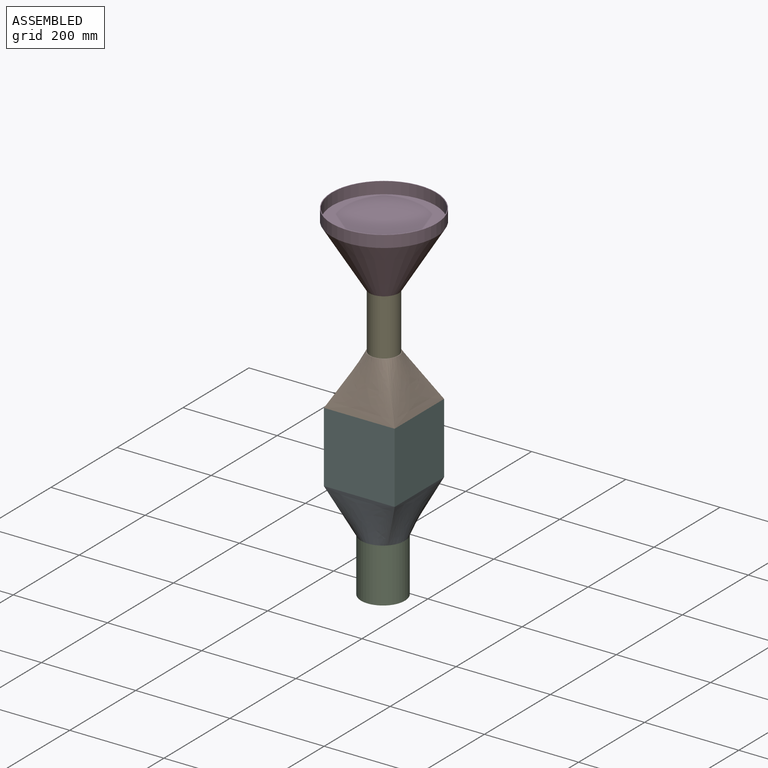
[diagram: assembled view]
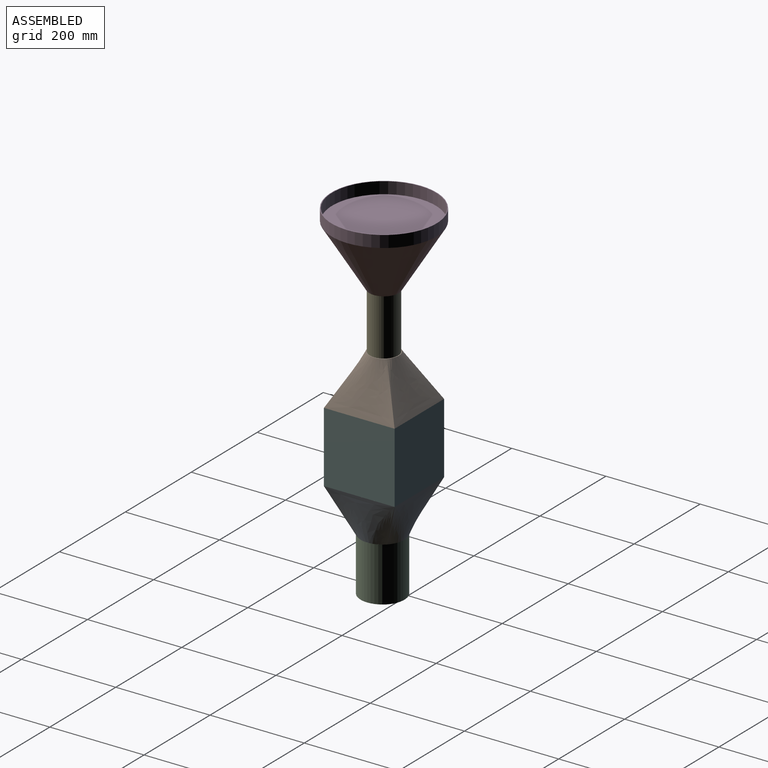
[diagram: assembled view, second angle]
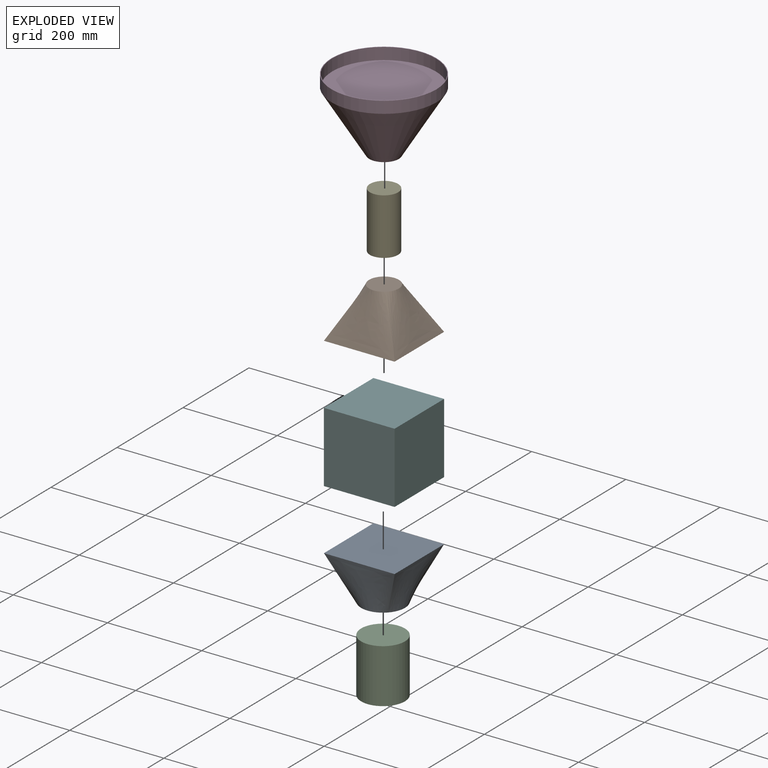
[diagram: exploded view]
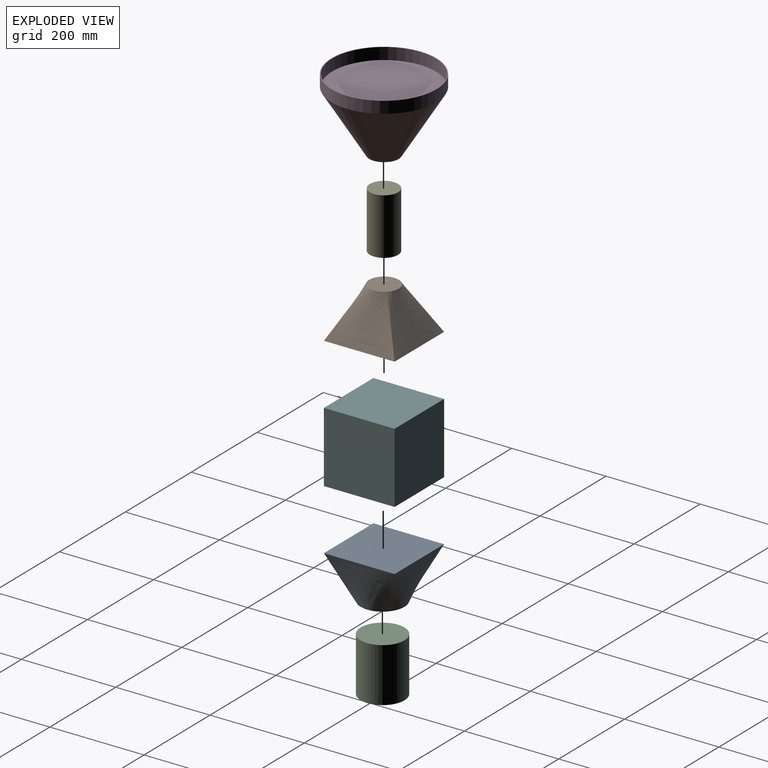
[diagram: exploded view, second angle]
ASSEMBLY  parts=6 mates=5
PART A: 6 faces, bbox 150x150x100 mm
  f0: plane 93.04x93.04mm, normal (0,0,-1), area 6793mm2, adj f2,f3,f4,f5
  f1: plane 150x150mm, normal (0,0,1), area 22500mm2, adj f2,f3,f4,f5
  f2: bspline ~150x100mm, area 11684.9mm2, adj f0,f1,f3,f5
  f3: bspline ~150x100mm, area 11796.6mm2, adj f0,f1,f2,f4
  f4: bspline ~150x100mm, area 11683.3mm2, adj f0,f1,f3,f5
  f5: bspline ~150x100mm, area 11579.4mm2, adj f0,f1,f2,f4
PART B: 6 faces, bbox 150x150x100 mm
  f0: plane 150x150mm, normal (0,0,-1), area 22500mm2, adj f2,f3,f4,f5
  f1: plane 63x63mm, normal (0,0,1), area 3117.2mm2, adj f2,f3,f4,f5
  f2: bspline ~150x100mm, area 10981.3mm2, adj f0,f1,f3,f5
  f3: bspline ~150x100mm, area 10981.3mm2, adj f0,f1,f2,f4
  f4: bspline ~150x100mm, area 10981.3mm2, adj f0,f1,f3,f5
  f5: bspline ~150x100mm, area 10981.3mm2, adj f0,f1,f2,f4
PART C: 3 faces, bbox 93x93x115 mm
  f0: cylinder r=46.5mm len=115mm, axis (0,0,-1), area 33599.3mm2, adj f1,f2
  f1: plane 93x93mm, normal (0,0,1), area 6792.9mm2, adj f0
  f2: plane 93x93mm, normal (0,0,-1), area 6792.9mm2, adj f0
PART D: 6 faces, bbox 223x223x155 mm
  f0: plane 63x63mm, normal (0,0,-1), area 3117.2mm2, adj f1
  f1: cone r=111.5mm half-angle=31.6deg, axis (0,0,1), area 68574.7mm2, adj f0,f3
  f2: cylinder r=110mm len=220mm, axis (0,0,-1), area 17278.8mm2, adj f4,f5
  f3: cylinder r=111.5mm len=223mm, axis (0,0,-1), area 17514.4mm2, adj f1,f4
  f4: plane 223x223mm, normal (0,0,1), area 1043.8mm2, adj f2,f3
  f5: plane 220x220mm, normal (0,0,1), area 38013.3mm2, adj f2
PART E: 3 faces, bbox 60x60x120 mm
  f0: cylinder r=30mm len=120mm, axis (0,0,-1), area 22619.5mm2, adj f1,f2
  f1: plane 60x60mm, normal (0,0,1), area 2827.4mm2, adj f0
  f2: plane 60x60mm, normal (0,0,-1), area 2827.4mm2, adj f0
PART F: 6 faces, bbox 150x150x150 mm
  f0: plane 150x150mm, normal (-1,0,0), area 22500mm2, adj f1,f3,f4,f5
  f1: plane 150x150mm, normal (0,-1,0), area 22500mm2, adj f0,f2,f4,f5
  f2: plane 150x150mm, normal (1,0,0), area 22500mm2, adj f1,f3,f4,f5
  f3: plane 150x150mm, normal (0,1,0), area 22500mm2, adj f0,f2,f4,f5
  f4: plane 150x150mm, normal (0,0,1), area 22500mm2, adj f0,f1,f2,f3
  f5: plane 150x150mm, normal (0,0,-1), area 22500mm2, adj f0,f1,f2,f3
PLACE A t=(-22.49,10.54,-7.22)mm
PLACE B t=(-22.49,13.56,242.78)mm
PLACE C t=(-22.49,10.54,-122.22)mm
PLACE D t=(-22.49,13.56,462.78)mm
PLACE E t=(-22.49,13.56,342.78)mm
PLACE F t=(-97.49,-61.44,92.78)mm
MATE planar B.f0 <-> F.f4  axis (0,0,1) through (-97.49,-61.44,242.78)mm
MATE planar A.f0 <-> C.f0  axis (0,0,-1) through (-22.49,10.54,-7.22)mm
MATE planar F.f5 <-> A.f1  axis (0,0,1) through (-97.49,-61.44,92.78)mm
MATE planar E.f0 <-> B.f1  axis (0,0,-1) through (-22.49,13.56,342.78)mm
MATE planar D.f1 <-> E.f0  axis (0,0,1) through (-22.49,13.56,462.78)mm
